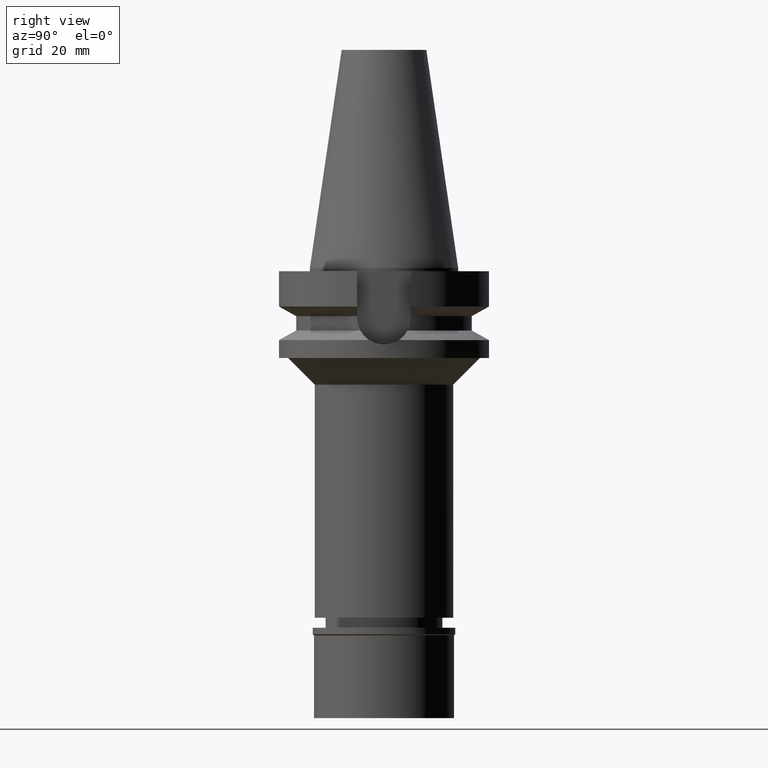
[diagram: clean part render]
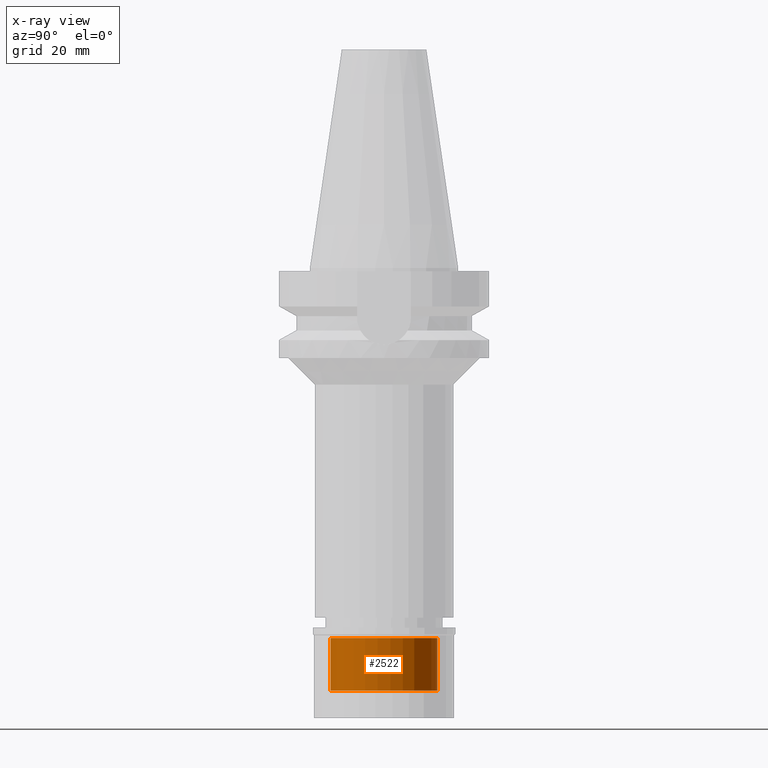
[diagram: x-ray — body ghosted, one internal face saturated and labeled with its STEP entity id]
A machine part, right view, then the same camera in x-ray: the body is ghosted and one INTERNAL B-rep face — a face not visible from any outside direction — is saturated and labeled: STEP entity #2522.
In plain terms, the highlighted cylindrical surface (partial cylindrical patch) has radius 16 mm, axis along (0, 0, -1).
Its self-contained STEP definition (entity closure, byte-faithful):
#37 = DIRECTION ( 'NONE',  ( 0.0000000000000000000, 1.000000000000000000, 0.0000000000000000000 ) ) ;
#113 = FACE_OUTER_BOUND ( 'NONE', #155, .T. ) ;
#155 = EDGE_LOOP ( 'NONE', ( #2843, #2456, #2359, #1351 ) ) ;
#263 = AXIS2_PLACEMENT_3D ( 'NONE', #2796, #1321, #1355 ) ;
#284 = DIRECTION ( 'NONE',  ( 0.0000000000000000000, 0.0000000000000000000, -1.000000000000000000 ) ) ;
#302 = CIRCLE ( 'NONE', #1461, 16.00000000000000000 ) ;
#425 = AXIS2_PLACEMENT_3D ( 'NONE', #2667, #284, #37 ) ;
#455 = VECTOR ( 'NONE', #954, 1000.000000000000000 ) ;
#486 = CARTESIAN_POINT ( 'NONE',  ( 0.0000000000000000000, 16.00000000000000000, -18.89999999999999858 ) ) ;
#829 = CYLINDRICAL_SURFACE ( 'NONE', #263, 16.00000000000000000 ) ;
#845 = DIRECTION ( 'NONE',  ( 0.0000000000000000000, -1.000000000000000000, 0.0000000000000000000 ) ) ;
#938 = EDGE_CURVE ( 'NONE', #1457, #2164, #2192, .T. ) ;
#940 = VERTEX_POINT ( 'NONE', #1714 ) ;
#954 = DIRECTION ( 'NONE',  ( 0.0000000000000000000, 0.0000000000000000000, 1.000000000000000000 ) ) ;
#1321 = DIRECTION ( 'NONE',  ( 0.0000000000000000000, 0.0000000000000000000, -1.000000000000000000 ) ) ;
#1351 = ORIENTED_EDGE ( 'NONE', *, *, #1382, .F. ) ;
#1355 = DIRECTION ( 'NONE',  ( 0.0000000000000000000, -1.000000000000000000, 0.0000000000000000000 ) ) ;
#1382 = EDGE_CURVE ( 'NONE', #1457, #2915, #2732, .T. ) ;
#1457 = VERTEX_POINT ( 'NONE', #486 ) ;
#1461 = AXIS2_PLACEMENT_3D ( 'NONE', #2056, #1830, #845 ) ;
#1622 = VECTOR ( 'NONE', #2253, 1000.000000000000000 ) ;
#1675 = EDGE_CURVE ( 'NONE', #940, #2915, #302, .T. ) ;
#1714 = CARTESIAN_POINT ( 'NONE',  ( 0.0000000000000000000, -16.00000000000000000, -3.100000000000000089 ) ) ;
#1830 = DIRECTION ( 'NONE',  ( 0.0000000000000000000, 0.0000000000000000000, 1.000000000000000000 ) ) ;
#1939 = CARTESIAN_POINT ( 'NONE',  ( 0.0000000000000000000, 16.00000000000000000, -3.100000000000000089 ) ) ;
#2056 = CARTESIAN_POINT ( 'NONE',  ( 0.0000000000000000000, 0.0000000000000000000, -3.100000000000000089 ) ) ;
#2164 = VERTEX_POINT ( 'NONE', #2291 ) ;
#2192 = CIRCLE ( 'NONE', #425, 16.00000000000000000 ) ;
#2253 = DIRECTION ( 'NONE',  ( 0.0000000000000000000, 0.0000000000000000000, 1.000000000000000000 ) ) ;
#2291 = CARTESIAN_POINT ( 'NONE',  ( 0.0000000000000000000, -16.00000000000000000, -18.89999999999999858 ) ) ;
#2359 = ORIENTED_EDGE ( 'NONE', *, *, #1675, .T. ) ;
#2456 = ORIENTED_EDGE ( 'NONE', *, *, #2944, .T. ) ;
#2493 = CARTESIAN_POINT ( 'NONE',  ( 0.0000000000000000000, -16.00000000000000000, -18.89999999999999858 ) ) ;
#2522 = ADVANCED_FACE ( 'NONE', ( #113 ), #829, .F. ) ;
#2542 = LINE ( 'NONE', #2493, #1622 ) ;
#2655 = CARTESIAN_POINT ( 'NONE',  ( 0.0000000000000000000, 16.00000000000000000, -18.89999999999999858 ) ) ;
#2667 = CARTESIAN_POINT ( 'NONE',  ( 0.0000000000000000000, 0.0000000000000000000, -18.89999999999999858 ) ) ;
#2732 = LINE ( 'NONE', #2655, #455 ) ;
#2796 = CARTESIAN_POINT ( 'NONE',  ( 0.0000000000000000000, 0.0000000000000000000, 0.0000000000000000000 ) ) ;
#2843 = ORIENTED_EDGE ( 'NONE', *, *, #938, .T. ) ;
#2915 = VERTEX_POINT ( 'NONE', #1939 ) ;
#2944 = EDGE_CURVE ( 'NONE', #2164, #940, #2542, .T. ) ;